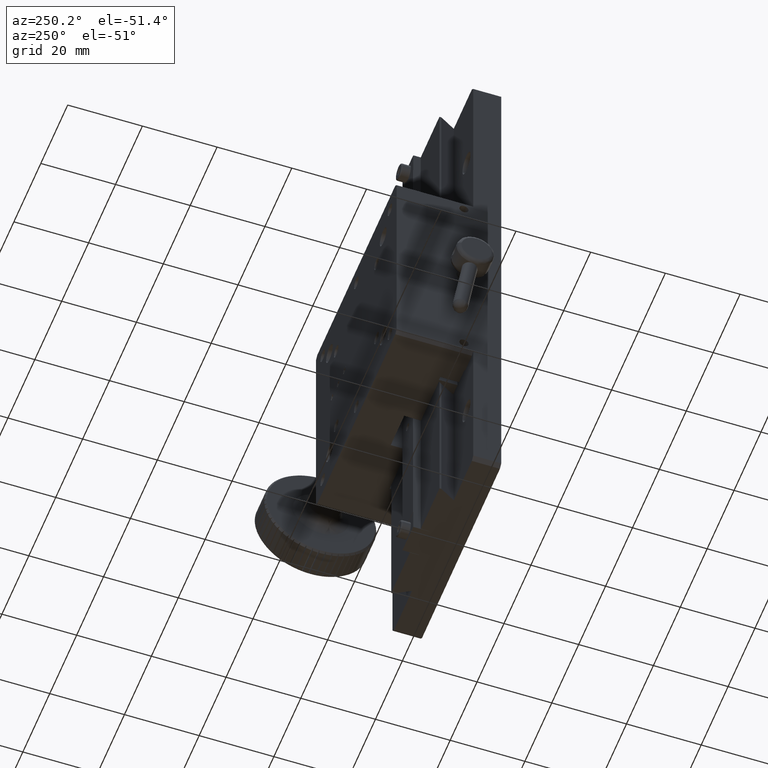
[diagram: clean part render]
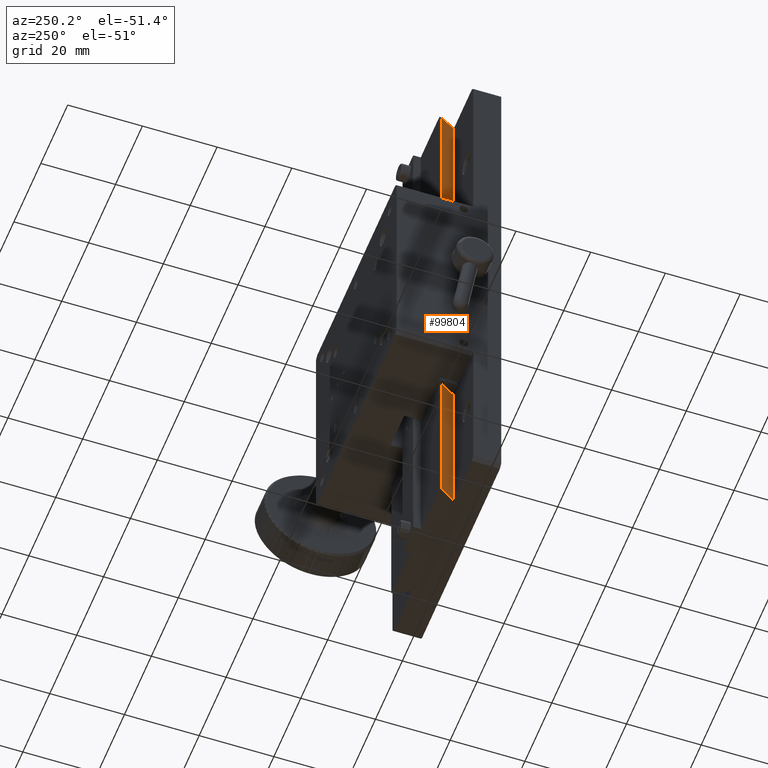
[diagram: same view with one face highlighted and labeled with its STEP entity id]
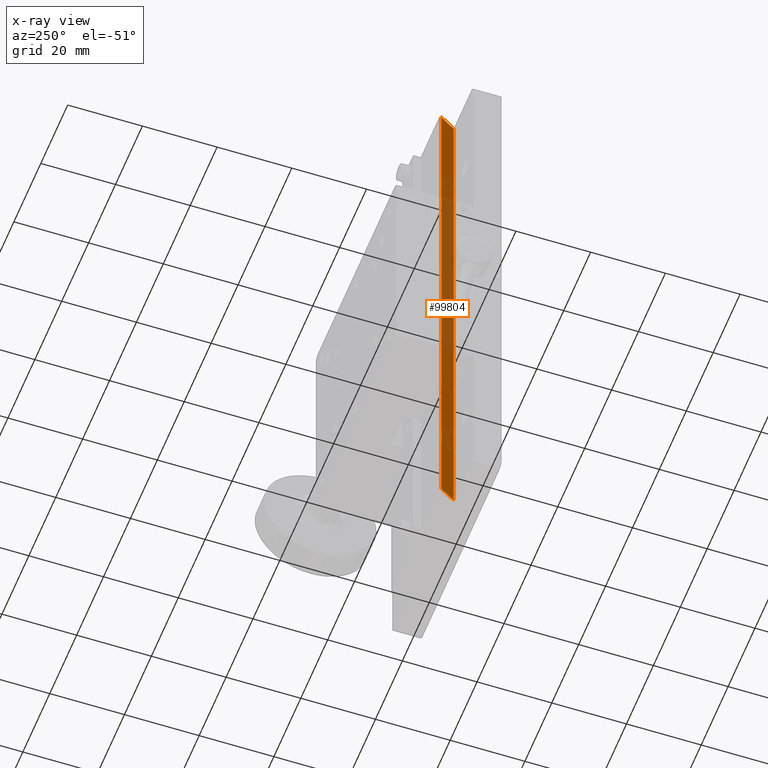
[diagram: x-ray of the same camera — body ghosted, the highlighted face saturated]
A machine part, auxiliary view. The second image highlights one B-rep face of the part: STEP entity #99804.
The next image is the same camera in x-ray: the body ghosted, the highlighted face saturated — about 40% of this face is hidden behind the body in this view.
In plain terms, the highlighted planar face has unit normal (0.866, 0.5, -0).
Its self-contained STEP definition (entity closure, byte-faithful):
#3432 = VERTEX_POINT ( 'NONE', #58159 ) ;
#8966 = ORIENTED_EDGE ( 'NONE', *, *, #76813, .F. ) ;
#15286 = DIRECTION ( 'NONE',  ( 0.8660254037844279384, 0.5000000000000187628, -0.000000000000000000 ) ) ;
#16679 = EDGE_CURVE ( 'NONE', #3432, #99159, #64434, .T. ) ;
#18483 = LINE ( 'NONE', #50168, #54769 ) ;
#19148 = ORIENTED_EDGE ( 'NONE', *, *, #16679, .F. ) ;
#24009 = LINE ( 'NONE', #100247, #78426 ) ;
#24776 = EDGE_CURVE ( 'NONE', #63853, #3432, #24009, .T. ) ;
#30040 = CARTESIAN_POINT ( 'NONE',  ( 49.00156960994747379, 64.60272800986759023, 163.8231807833472828 ) ) ;
#37330 = CARTESIAN_POINT ( 'NONE',  ( 49.00156960994748800, 64.60272800986757602, 13.82318078334728462 ) ) ;
#38296 = CARTESIAN_POINT ( 'NONE',  ( 49.00156960994747379, 64.60272800986759023, 163.8231807833472828 ) ) ;
#38795 = DIRECTION ( 'NONE',  ( -0.5000000000000186517, 0.8660254037844278274, 0.000000000000000000 ) ) ;
#40327 = PLANE ( 'NONE',  #76861 ) ;
#50168 = CARTESIAN_POINT ( 'NONE',  ( 49.00156960994747379, 64.60272800986759023, 163.8231807833472828 ) ) ;
#54769 = VECTOR ( 'NONE', #81375, 1000.000000000000000 ) ;
#56467 = CARTESIAN_POINT ( 'NONE',  ( 49.00156960994748800, 64.60272800986757602, 163.8231807833472828 ) ) ;
#58159 = CARTESIAN_POINT ( 'NONE',  ( 46.58802334475603146, 68.78311276759707482, 13.82318078334726330 ) ) ;
#62150 = EDGE_CURVE ( 'NONE', #69628, #99159, #68926, .T. ) ;
#63525 = ORIENTED_EDGE ( 'NONE', *, *, #62150, .T. ) ;
#63853 = VERTEX_POINT ( 'NONE', #37330 ) ;
#64434 = LINE ( 'NONE', #88489, #75174 ) ;
#68926 = LINE ( 'NONE', #30040, #81755 ) ;
#69628 = VERTEX_POINT ( 'NONE', #56467 ) ;
#73283 = ORIENTED_EDGE ( 'NONE', *, *, #24776, .F. ) ;
#75174 = VECTOR ( 'NONE', #88974, 1000.000000000000000 ) ;
#76693 = CARTESIAN_POINT ( 'NONE',  ( 46.58802334475603146, 68.78311276759707482, 163.8231807833472828 ) ) ;
#76813 = EDGE_CURVE ( 'NONE', #69628, #63853, #18483, .T. ) ;
#76861 = AXIS2_PLACEMENT_3D ( 'NONE', #38296, #15286, #38795 ) ;
#77603 = DIRECTION ( 'NONE',  ( -0.5000000000000187628, 0.8660254037844278274, 0.000000000000000000 ) ) ;
#78426 = VECTOR ( 'NONE', #99754, 1000.000000000000000 ) ;
#81375 = DIRECTION ( 'NONE',  ( -0.000000000000000000, -0.000000000000000000, -1.000000000000000000 ) ) ;
#81755 = VECTOR ( 'NONE', #77603, 1000.000000000000000 ) ;
#86367 = FACE_OUTER_BOUND ( 'NONE', #97546, .T. ) ;
#88489 = CARTESIAN_POINT ( 'NONE',  ( 46.58802334475603146, 68.78311276759707482, 163.8231807833472828 ) ) ;
#88974 = DIRECTION ( 'NONE',  ( 0.000000000000000000, 0.000000000000000000, 1.000000000000000000 ) ) ;
#97546 = EDGE_LOOP ( 'NONE', ( #19148, #73283, #8966, #63525 ) ) ;
#99159 = VERTEX_POINT ( 'NONE', #76693 ) ;
#99754 = DIRECTION ( 'NONE',  ( -0.5000000000000187628, 0.8660254037844278274, 0.000000000000000000 ) ) ;
#99804 = ADVANCED_FACE ( 'NONE', ( #86367 ), #40327, .F. ) ;
#100247 = CARTESIAN_POINT ( 'NONE',  ( 49.00156960994747379, 64.60272800986759023, 13.82318078334728284 ) ) ;